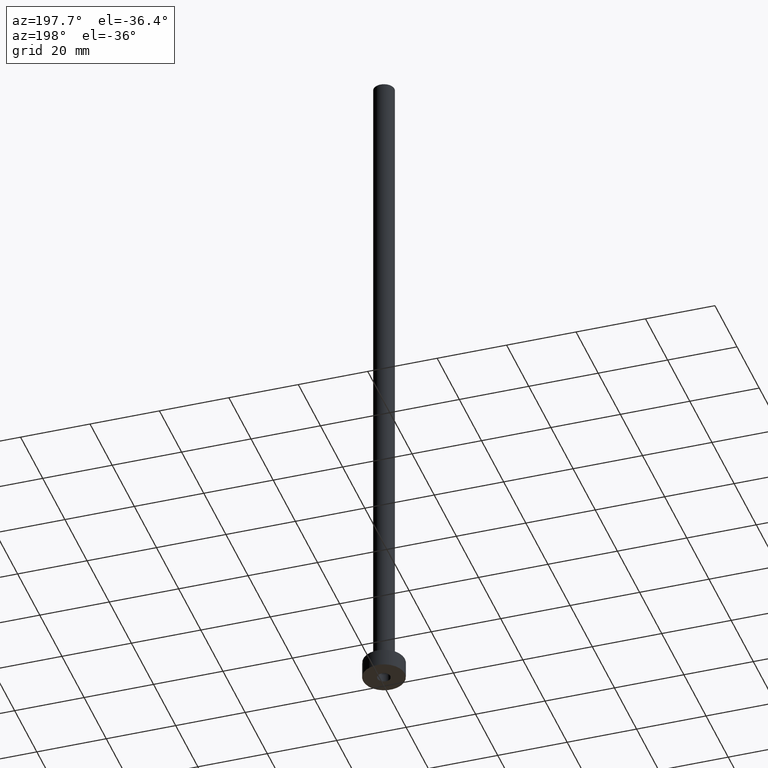
[diagram: clean part render]
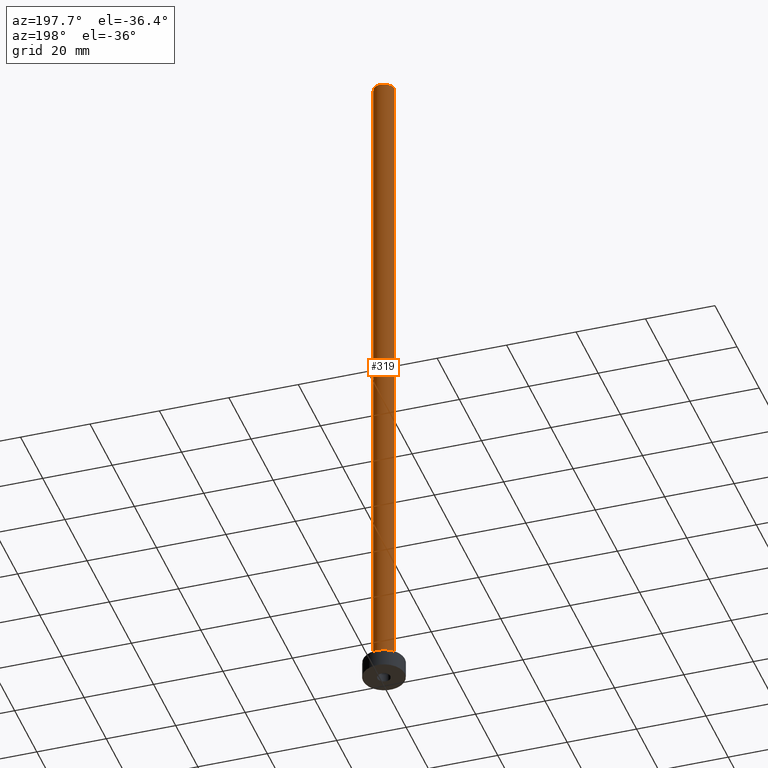
[diagram: same view with one face highlighted and labeled with its STEP entity id]
A machine part, auxiliary view. The second image highlights one B-rep face of the part: STEP entity #319.
In plain terms, the highlighted cylindrical surface (edge-blend (fillet) strip) has radius 3 mm, axis along (-0, -0, -1).
Its self-contained STEP definition (entity closure, byte-faithful):
#2 = EDGE_CURVE ( 'NONE', #436, #320, #343, .T. ) ;
#4 = DIRECTION ( 'NONE',  ( -1.000000000000000000, 0.000000000000000000, 0.000000000000000000 ) ) ;
#8 = DIRECTION ( 'NONE',  ( 0.000000000000000000, 0.000000000000000000, 1.000000000000000000 ) ) ;
#16 = CARTESIAN_POINT ( 'NONE',  ( 0.000000000000000000, 0.000000000000000000, 200.0000000000000000 ) ) ;
#18 = CIRCLE ( 'NONE', #255, 3.000000000000000444 ) ;
#20 = EDGE_LOOP ( 'NONE', ( #223, #452, #358, #137 ) ) ;
#37 = CARTESIAN_POINT ( 'NONE',  ( -3.000000000000000444, 0.000000000000000000, 5.299999999999998934 ) ) ;
#39 = CYLINDRICAL_SURFACE ( 'NONE', #453, 3.000000000000000444 ) ;
#57 = AXIS2_PLACEMENT_3D ( 'NONE', #284, #8, #122 ) ;
#79 = CARTESIAN_POINT ( 'NONE',  ( 3.000000000000000444, 3.673940397442060361E-16, 5.299999999999998934 ) ) ;
#96 = DIRECTION ( 'NONE',  ( 0.000000000000000000, 0.000000000000000000, 1.000000000000000000 ) ) ;
#98 = CARTESIAN_POINT ( 'NONE',  ( 3.000000000000000444, 3.673940397442060361E-16, 200.0000000000000000 ) ) ;
#104 = EDGE_CURVE ( 'NONE', #320, #294, #212, .T. ) ;
#122 = DIRECTION ( 'NONE',  ( 1.000000000000000000, 0.000000000000000000, 0.000000000000000000 ) ) ;
#137 = ORIENTED_EDGE ( 'NONE', *, *, #198, .F. ) ;
#179 = CARTESIAN_POINT ( 'NONE',  ( 0.000000000000000000, 0.000000000000000000, 200.0000000000000000 ) ) ;
#198 = EDGE_CURVE ( 'NONE', #314, #294, #361, .T. ) ;
#212 = CIRCLE ( 'NONE', #57, 3.000000000000000444 ) ;
#223 = ORIENTED_EDGE ( 'NONE', *, *, #441, .F. ) ;
#227 = VECTOR ( 'NONE', #271, 1000.000000000000000 ) ;
#255 = AXIS2_PLACEMENT_3D ( 'NONE', #16, #96, #295 ) ;
#271 = DIRECTION ( 'NONE',  ( -0.000000000000000000, -0.000000000000000000, -1.000000000000000000 ) ) ;
#284 = CARTESIAN_POINT ( 'NONE',  ( 0.000000000000000000, 0.000000000000000000, 5.299999999999998934 ) ) ;
#291 = CARTESIAN_POINT ( 'NONE',  ( -3.000000000000000444, 0.000000000000000000, 200.0000000000000000 ) ) ;
#294 = VERTEX_POINT ( 'NONE', #37 ) ;
#295 = DIRECTION ( 'NONE',  ( 1.000000000000000000, 0.000000000000000000, 0.000000000000000000 ) ) ;
#314 = VERTEX_POINT ( 'NONE', #345 ) ;
#316 = DIRECTION ( 'NONE',  ( -0.000000000000000000, -0.000000000000000000, -1.000000000000000000 ) ) ;
#319 = ADVANCED_FACE ( 'NONE', ( #388 ), #39, .T. ) ;
#320 = VERTEX_POINT ( 'NONE', #79 ) ;
#343 = LINE ( 'NONE', #374, #227 ) ;
#345 = CARTESIAN_POINT ( 'NONE',  ( -3.000000000000000444, 0.000000000000000000, 200.0000000000000000 ) ) ;
#358 = ORIENTED_EDGE ( 'NONE', *, *, #104, .T. ) ;
#361 = LINE ( 'NONE', #291, #415 ) ;
#374 = CARTESIAN_POINT ( 'NONE',  ( 3.000000000000000444, 3.673940397442060361E-16, 200.0000000000000000 ) ) ;
#388 = FACE_OUTER_BOUND ( 'NONE', #20, .T. ) ;
#415 = VECTOR ( 'NONE', #421, 1000.000000000000000 ) ;
#421 = DIRECTION ( 'NONE',  ( -0.000000000000000000, -0.000000000000000000, -1.000000000000000000 ) ) ;
#436 = VERTEX_POINT ( 'NONE', #98 ) ;
#441 = EDGE_CURVE ( 'NONE', #436, #314, #18, .T. ) ;
#452 = ORIENTED_EDGE ( 'NONE', *, *, #2, .T. ) ;
#453 = AXIS2_PLACEMENT_3D ( 'NONE', #179, #316, #4 ) ;